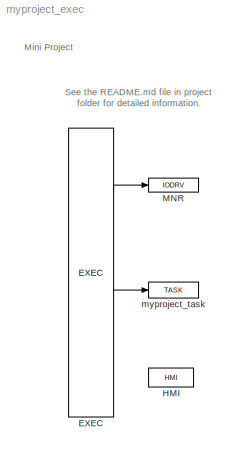
MODEL myproject_exec
KIND model
BLOCK [Reference] EXEC  REF=execlib/EXEC
  Ports = [0, 8, 0, 0, 0]
  SourceBlock = execlib/EXEC
  ntick0 = 1
  ntick1 = 50
  ntick2 = 100
  ntick3 = 1200
  pri0 = 5
  pri1 = 9
  pri2 = 13
  pri3 = 18
  target = Generic target device
  tick = 0.05
BLOCK [Reference] HMI  REF=execlib/HMI
  Compression = off
  GenerateRexHMI = on
  GenerateWebWatch = off
  HmiDir = hmi
  IncludeHMI = on
  Ports = [0, 0, 0, 0, 0]
  RedirectToHMI = on
  SourceBlock = execlib/HMI
  SourceDir = hmisrc
BLOCK [Reference] MNR  REF=execlib/IODRV
  Ports = [1, 1, 0, 0, 0]
  SourceBlock = execlib/IODRV
  cfgname = monarcohat.rio
  classname = MonarcoHatDrv
  factor = 1
  module = MonarcoDrv
  pri = 3
  stack = 10240
  timer = off
BLOCK [Reference] myproject_task  REF=execlib/TASK
  MDLOPEN = on
  Ports = [1, 1, 0, 0, 0]
  SourceBlock = execlib/TASK
  factor = 1
  stack = 10240
  start = 0
  stop = 1
LINE EXEC:2 -> MNR:1
LINE EXEC:5 -> myproject_task:1
